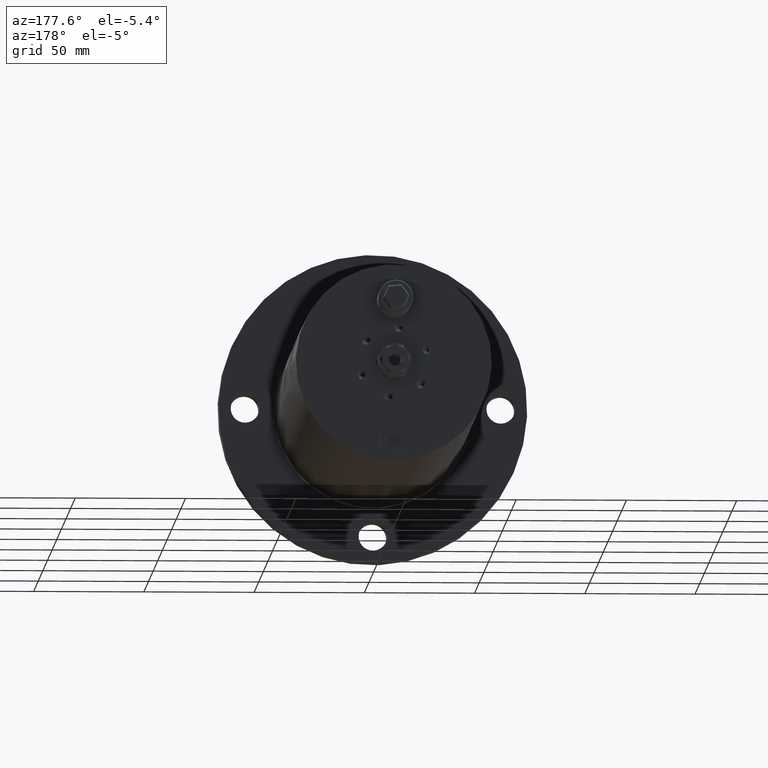
[diagram: clean part render]
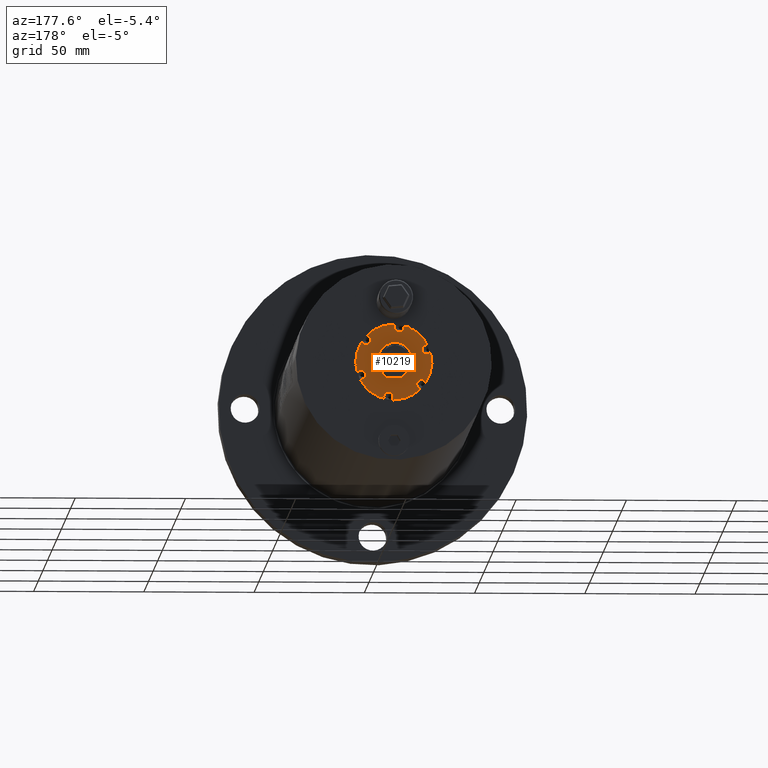
[diagram: same view with one face highlighted and labeled with its STEP entity id]
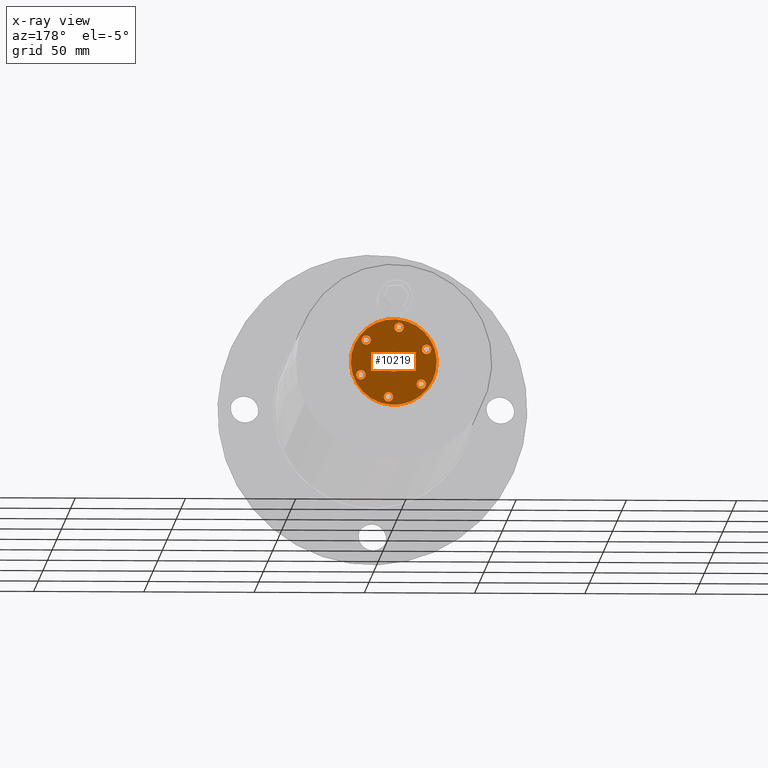
[diagram: x-ray of the same camera — body ghosted, the highlighted face saturated]
A machine part, auxiliary view. The second image highlights one B-rep face of the part: STEP entity #10219.
The next image is the same camera in x-ray: the body ghosted, the highlighted face saturated — about 0% of this face is hidden behind the body in this view.
In plain terms, the highlighted planar face has unit normal (-0, -1, 0).
Its self-contained STEP definition (entity closure, byte-faithful):
#71 = CARTESIAN_POINT ( 'NONE',  ( -13.25960417752542700, 218.5000000000000000, 7.140931105628778800 ) ) ;
#774 = ORIENTED_EDGE ( 'NONE', *, *, #4988, .F. ) ;
#948 = EDGE_CURVE ( 'NONE', #26288, #12910, #34213, .T. ) ;
#1126 = ORIENTED_EDGE ( 'NONE', *, *, #16879, .F. ) ;
#1185 = DIRECTION ( 'NONE',  ( 4.737586986270516600E-017, 1.000000000000000000, -3.427729654826224900E-016 ) ) ;
#1541 = FACE_BOUND ( 'NONE', #30358, .T. ) ;
#1750 = DIRECTION ( 'NONE',  ( -0.7811794389744176600, 0.0000000000000000000, -0.6243065626145654100 ) ) ;
#2047 = DIRECTION ( 'NONE',  ( 4.737586986270516600E-017, 1.000000000000000000, -3.427729654826224900E-016 ) ) ;
#2172 = DIRECTION ( 'NONE',  ( 4.737586986270516600E-017, 1.000000000000000000, -3.427729654826224900E-016 ) ) ;
#2482 = ORIENTED_EDGE ( 'NONE', *, *, #25121, .T. ) ;
#2683 = DIRECTION ( 'NONE',  ( 4.737586986270516600E-017, 1.000000000000000000, -3.427729654826224900E-016 ) ) ;
#2802 = VERTEX_POINT ( 'NONE', #35395 ) ;
#2872 = VERTEX_POINT ( 'NONE', #15682 ) ;
#3118 = ORIENTED_EDGE ( 'NONE', *, *, #22005, .F. ) ;
#3232 = DIRECTION ( 'NONE',  ( 4.737586986270516600E-017, 1.000000000000000000, -3.427729654826224900E-016 ) ) ;
#3319 = EDGE_CURVE ( 'NONE', #2802, #11209, #34921, .T. ) ;
#3680 = DIRECTION ( 'NONE',  ( 4.737586986270516600E-017, 1.000000000000000000, -3.427729654826224900E-016 ) ) ;
#3785 = ORIENTED_EDGE ( 'NONE', *, *, #3319, .F. ) ;
#4234 = AXIS2_PLACEMENT_3D ( 'NONE', #25544, #28628, #14736 ) ;
#4324 = CARTESIAN_POINT ( 'NONE',  ( 14.13934784543746700, 218.5000000000000000, 11.29994878332363900 ) ) ;
#4476 = VERTEX_POINT ( 'NONE', #31351 ) ;
#4686 = DIRECTION ( 'NONE',  ( -0.7811794389744176600, 0.0000000000000000000, -0.6243065626145654100 ) ) ;
#4812 = DIRECTION ( 'NONE',  ( 4.737586986270516600E-017, 1.000000000000000000, -3.427729654826224900E-016 ) ) ;
#4903 = CARTESIAN_POINT ( 'NONE',  ( -12.49887102359016600, 218.5000000000000000, -9.988905001833037600 ) ) ;
#4905 = AXIS2_PLACEMENT_3D ( 'NONE', #12987, #21682, #35804 ) ;
#4988 = EDGE_CURVE ( 'NONE', #19470, #31964, #23429, .T. ) ;
#5555 = FACE_BOUND ( 'NONE', #12462, .T. ) ;
#6407 = EDGE_LOOP ( 'NONE', ( #22110, #1126 ) ) ;
#6647 = AXIS2_PLACEMENT_3D ( 'NONE', #23299, #29013, #31850 ) ;
#7343 = DIRECTION ( 'NONE',  ( 4.737586986270516600E-017, 1.000000000000000000, -3.427729654826224900E-016 ) ) ;
#7349 = CARTESIAN_POINT ( 'NONE',  ( -10.85839420174389100, 218.5000000000000000, -8.677861220342451900 ) ) ;
#7695 = DIRECTION ( 'NONE',  ( -0.7811794389744176600, 0.0000000000000000000, -0.6243065626145654100 ) ) ;
#7873 = DIRECTION ( 'NONE',  ( -0.7811794389744173300, 0.0000000000000000000, -0.6243065626145657400 ) ) ;
#8263 = CARTESIAN_POINT ( 'NONE',  ( 5.134781488891349000E-013, 218.5000000000000000, 5.204170427930421300E-015 ) ) ;
#8554 = DIRECTION ( 'NONE',  ( 4.737586986270516600E-017, 1.000000000000000000, -3.427729654826224900E-016 ) ) ;
#8923 = ORIENTED_EDGE ( 'NONE', *, *, #23219, .F. ) ;
#9459 = ORIENTED_EDGE ( 'NONE', *, *, #29887, .F. ) ;
#9575 = CARTESIAN_POINT ( 'NONE',  ( -14.90008099937170300, 218.5000000000000000, 5.829887324138192100 ) ) ;
#9982 = FACE_BOUND ( 'NONE', #6407, .T. ) ;
#10148 = CIRCLE ( 'NONE', #12710, 2.099999999999999600 ) ;
#10202 = CARTESIAN_POINT ( 'NONE',  ( 12.49887102359118900, 218.5000000000000000, 9.988905001833051900 ) ) ;
#10219 = ADVANCED_FACE ( 'NONE', ( #1541, #20233, #33497, #9982, #5555, #19763, #33038, #30860 ), #30273, .F. ) ;
#10465 = VERTEX_POINT ( 'NONE', #14659 ) ;
#11110 = DIRECTION ( 'NONE',  ( -0.7811794389744173300, 0.0000000000000000000, -0.6243065626145655200 ) ) ;
#11209 = VERTEX_POINT ( 'NONE', #71 ) ;
#11970 = CARTESIAN_POINT ( 'NONE',  ( -2.401209975780985900, 218.5000000000000300, 15.81879232597127000 ) ) ;
#12335 = AXIS2_PLACEMENT_3D ( 'NONE', #11970, #31576, #34427 ) ;
#12425 = DIRECTION ( 'NONE',  ( -0.7811794389744176600, 0.0000000000000000000, -0.6243065626145654100 ) ) ;
#12462 = EDGE_LOOP ( 'NONE', ( #12523, #3118 ) ) ;
#12523 = ORIENTED_EDGE ( 'NONE', *, *, #17151, .F. ) ;
#12619 = CARTESIAN_POINT ( 'NONE',  ( -15.23299906000063500, 218.5000000000000000, -12.17397797098402500 ) ) ;
#12697 = DIRECTION ( 'NONE',  ( 0.7811794389744174400, 0.0000000000000000000, 0.6243065626145655200 ) ) ;
#12710 = AXIS2_PLACEMENT_3D ( 'NONE', #9575, #26465, #12425 ) ;
#12910 = VERTEX_POINT ( 'NONE', #12619 ) ;
#12987 = CARTESIAN_POINT ( 'NONE',  ( 14.90008099937272900, 218.5000000000000000, -5.829887324138191200 ) ) ;
#13054 = CARTESIAN_POINT ( 'NONE',  ( -0.7607331539347106400, 218.5000000000000300, 17.12983610746185900 ) ) ;
#13267 = DIRECTION ( 'NONE',  ( -4.737586986270519000E-017, -1.000000000000000000, 3.427729654826224900E-016 ) ) ;
#13687 = VERTEX_POINT ( 'NONE', #13054 ) ;
#14164 = EDGE_LOOP ( 'NONE', ( #14168, #2482 ) ) ;
#14168 = ORIENTED_EDGE ( 'NONE', *, *, #948, .T. ) ;
#14423 = CARTESIAN_POINT ( 'NONE',  ( -14.13934784543644200, 218.5000000000000000, -11.29994878332362500 ) ) ;
#14659 = CARTESIAN_POINT ( 'NONE',  ( 3.345791537127933000, 218.5000000000000000, 2.673905007678183400 ) ) ;
#14736 = DIRECTION ( 'NONE',  ( -0.7811794389744173300, 0.0000000000000000000, -0.6243065626145655200 ) ) ;
#15444 = CARTESIAN_POINT ( 'NONE',  ( 13.25960417752645300, 218.5000000000000000, -7.140931105628777900 ) ) ;
#15682 = CARTESIAN_POINT ( 'NONE',  ( 10.85839420174491300, 218.5000000000000000, 8.677861220342464300 ) ) ;
#16135 = CARTESIAN_POINT ( 'NONE',  ( 5.134781488891349000E-013, 218.5000000000000000, 5.204170427930421300E-015 ) ) ;
#16321 = DIRECTION ( 'NONE',  ( 4.737586986270516600E-017, 1.000000000000000000, -3.427729654826224900E-016 ) ) ;
#16488 = AXIS2_PLACEMENT_3D ( 'NONE', #34847, #3232, #20362 ) ;
#16689 = CIRCLE ( 'NONE', #6647, 2.100000000000000500 ) ;
#16859 = DIRECTION ( 'NONE',  ( 0.7811794389744174400, 0.0000000000000000000, 0.6243065626145655200 ) ) ;
#16879 = EDGE_CURVE ( 'NONE', #13687, #17929, #21142, .T. ) ;
#17131 = EDGE_LOOP ( 'NONE', ( #23119, #22647 ) ) ;
#17151 = EDGE_CURVE ( 'NONE', #2872, #26620, #29579, .T. ) ;
#17195 = CIRCLE ( 'NONE', #24734, 2.099999999999999600 ) ;
#17209 = EDGE_CURVE ( 'NONE', #10465, #4476, #25151, .T. ) ;
#17852 = VERTEX_POINT ( 'NONE', #20826 ) ;
#17929 = VERTEX_POINT ( 'NONE', #21921 ) ;
#18152 = EDGE_LOOP ( 'NONE', ( #3785, #9459 ) ) ;
#18543 = AXIS2_PLACEMENT_3D ( 'NONE', #4903, #16321, #7873 ) ;
#18699 = CARTESIAN_POINT ( 'NONE',  ( -2.401209975780985900, 218.5000000000000300, 15.81879232597127000 ) ) ;
#19175 = ORIENTED_EDGE ( 'NONE', *, *, #19196, .F. ) ;
#19196 = EDGE_CURVE ( 'NONE', #31964, #19470, #28236, .T. ) ;
#19470 = VERTEX_POINT ( 'NONE', #14423 ) ;
#19567 = CARTESIAN_POINT ( 'NONE',  ( 2.401209975782013100, 218.4999999999999700, -15.81879232597126300 ) ) ;
#19703 = AXIS2_PLACEMENT_3D ( 'NONE', #18699, #2047, #35907 ) ;
#19763 = FACE_BOUND ( 'NONE', #24977, .T. ) ;
#20036 = AXIS2_PLACEMENT_3D ( 'NONE', #21025, #1185, #12697 ) ;
#20233 = FACE_OUTER_BOUND ( 'NONE', #14164, .T. ) ;
#20362 = DIRECTION ( 'NONE',  ( -0.7811794389744173300, 0.0000000000000000000, -0.6243065626145657400 ) ) ;
#20689 = CARTESIAN_POINT ( 'NONE',  ( -14.90008099937170300, 218.5000000000000000, 5.829887324138192100 ) ) ;
#20817 = EDGE_CURVE ( 'NONE', #21084, #17852, #16689, .T. ) ;
#20826 = CARTESIAN_POINT ( 'NONE',  ( 0.7607331539357367100, 218.4999999999999700, -17.12983610746185200 ) ) ;
#21025 = CARTESIAN_POINT ( 'NONE',  ( 5.134781488891349000E-013, 218.5000000000000000, 5.204170427930421300E-015 ) ) ;
#21084 = VERTEX_POINT ( 'NONE', #29967 ) ;
#21142 = CIRCLE ( 'NONE', #19703, 2.099999999999999200 ) ;
#21298 = EDGE_CURVE ( 'NONE', #17929, #13687, #30891, .T. ) ;
#21354 = AXIS2_PLACEMENT_3D ( 'NONE', #21800, #4812, #4686 ) ;
#21682 = DIRECTION ( 'NONE',  ( 4.737586986270516600E-017, 1.000000000000000000, -3.427729654826224900E-016 ) ) ;
#21800 = CARTESIAN_POINT ( 'NONE',  ( 12.49887102359118900, 218.5000000000000000, 9.988905001833051900 ) ) ;
#21921 = CARTESIAN_POINT ( 'NONE',  ( -4.041686797627262400, 218.5000000000000300, 14.50774854448068200 ) ) ;
#21960 = DIRECTION ( 'NONE',  ( 0.7811794389744174400, 1.769863563973841200E-016, 0.6243065626145655200 ) ) ;
#22005 = EDGE_CURVE ( 'NONE', #26620, #2872, #36691, .T. ) ;
#22011 = AXIS2_PLACEMENT_3D ( 'NONE', #16135, #13267, #21960 ) ;
#22067 = EDGE_CURVE ( 'NONE', #26990, #23503, #17195, .T. ) ;
#22110 = ORIENTED_EDGE ( 'NONE', *, *, #21298, .F. ) ;
#22647 = ORIENTED_EDGE ( 'NONE', *, *, #32741, .F. ) ;
#22831 = AXIS2_PLACEMENT_3D ( 'NONE', #10202, #33002, #1750 ) ;
#22906 = AXIS2_PLACEMENT_3D ( 'NONE', #20689, #3680, #32089 ) ;
#23119 = ORIENTED_EDGE ( 'NONE', *, *, #22067, .F. ) ;
#23219 = EDGE_CURVE ( 'NONE', #4476, #10465, #26914, .T. ) ;
#23299 = CARTESIAN_POINT ( 'NONE',  ( 2.401209975782013100, 218.4999999999999700, -15.81879232597126300 ) ) ;
#23391 = CARTESIAN_POINT ( 'NONE',  ( 16.54055782121900700, 218.5000000000000000, -4.518843542647603700 ) ) ;
#23429 = CIRCLE ( 'NONE', #16488, 2.099999999999998300 ) ;
#23503 = VERTEX_POINT ( 'NONE', #23391 ) ;
#24034 = AXIS2_PLACEMENT_3D ( 'NONE', #8263, #2172, #11110 ) ;
#24370 = CIRCLE ( 'NONE', #31689, 2.100000000000000500 ) ;
#24734 = AXIS2_PLACEMENT_3D ( 'NONE', #30043, #7343, #7695 ) ;
#24977 = EDGE_LOOP ( 'NONE', ( #774, #19175 ) ) ;
#25121 = EDGE_CURVE ( 'NONE', #12910, #26288, #30878, .T. ) ;
#25151 = CIRCLE ( 'NONE', #4234, 4.282999999999988800 ) ;
#25406 = DIRECTION ( 'NONE',  ( -0.7811794389744170000, 0.0000000000000000000, -0.6243065626145659600 ) ) ;
#25544 = CARTESIAN_POINT ( 'NONE',  ( 5.134781488891349000E-013, 218.5000000000000000, 5.204170427930421300E-015 ) ) ;
#25828 = EDGE_LOOP ( 'NONE', ( #29833, #29006 ) ) ;
#26288 = VERTEX_POINT ( 'NONE', #26532 ) ;
#26465 = DIRECTION ( 'NONE',  ( 4.737586986270516600E-017, 1.000000000000000000, -3.427729654826224900E-016 ) ) ;
#26532 = CARTESIAN_POINT ( 'NONE',  ( 15.23299906000165300, 218.5000000000000000, 12.17397797098403300 ) ) ;
#26620 = VERTEX_POINT ( 'NONE', #4324 ) ;
#26914 = CIRCLE ( 'NONE', #24034, 4.282999999999988800 ) ;
#26990 = VERTEX_POINT ( 'NONE', #15444 ) ;
#28236 = CIRCLE ( 'NONE', #18543, 2.099999999999998300 ) ;
#28628 = DIRECTION ( 'NONE',  ( 4.737586986270516600E-017, 1.000000000000000000, -3.427729654826224900E-016 ) ) ;
#29006 = ORIENTED_EDGE ( 'NONE', *, *, #20817, .F. ) ;
#29013 = DIRECTION ( 'NONE',  ( 4.737586986270516600E-017, 1.000000000000000000, -3.427729654826224900E-016 ) ) ;
#29358 = EDGE_CURVE ( 'NONE', #17852, #21084, #24370, .T. ) ;
#29444 = ORIENTED_EDGE ( 'NONE', *, *, #17209, .F. ) ;
#29579 = CIRCLE ( 'NONE', #21354, 2.099999999999999600 ) ;
#29833 = ORIENTED_EDGE ( 'NONE', *, *, #29358, .F. ) ;
#29887 = EDGE_CURVE ( 'NONE', #11209, #2802, #10148, .T. ) ;
#29967 = CARTESIAN_POINT ( 'NONE',  ( 4.041686797628289100, 218.4999999999999700, -14.50774854448067500 ) ) ;
#30043 = CARTESIAN_POINT ( 'NONE',  ( 14.90008099937272900, 218.5000000000000000, -5.829887324138191200 ) ) ;
#30273 = PLANE ( 'NONE',  #22011 ) ;
#30358 = EDGE_LOOP ( 'NONE', ( #8923, #29444 ) ) ;
#30860 = FACE_BOUND ( 'NONE', #17131, .T. ) ;
#30878 = CIRCLE ( 'NONE', #20036, 19.50000000000000400 ) ;
#30891 = CIRCLE ( 'NONE', #12335, 2.099999999999999200 ) ;
#31351 = CARTESIAN_POINT ( 'NONE',  ( -3.345791537126907100, 218.5000000000000000, -2.673905007678171900 ) ) ;
#31576 = DIRECTION ( 'NONE',  ( 4.737586986270516600E-017, 1.000000000000000000, -3.427729654826224900E-016 ) ) ;
#31689 = AXIS2_PLACEMENT_3D ( 'NONE', #19567, #2683, #25406 ) ;
#31850 = DIRECTION ( 'NONE',  ( -0.7811794389744170000, 0.0000000000000000000, -0.6243065626145659600 ) ) ;
#31964 = VERTEX_POINT ( 'NONE', #7349 ) ;
#32089 = DIRECTION ( 'NONE',  ( -0.7811794389744176600, 0.0000000000000000000, -0.6243065626145654100 ) ) ;
#32741 = EDGE_CURVE ( 'NONE', #23503, #26990, #34822, .T. ) ;
#33002 = DIRECTION ( 'NONE',  ( 4.737586986270516600E-017, 1.000000000000000000, -3.427729654826224900E-016 ) ) ;
#33038 = FACE_BOUND ( 'NONE', #25828, .T. ) ;
#33497 = FACE_BOUND ( 'NONE', #18152, .T. ) ;
#33957 = CARTESIAN_POINT ( 'NONE',  ( 5.134781488891349000E-013, 218.5000000000000000, 5.204170427930421300E-015 ) ) ;
#34213 = CIRCLE ( 'NONE', #34740, 19.50000000000000400 ) ;
#34427 = DIRECTION ( 'NONE',  ( -0.7811794389744174400, 0.0000000000000000000, -0.6243065626145655200 ) ) ;
#34740 = AXIS2_PLACEMENT_3D ( 'NONE', #33957, #8554, #16859 ) ;
#34822 = CIRCLE ( 'NONE', #4905, 2.099999999999999600 ) ;
#34847 = CARTESIAN_POINT ( 'NONE',  ( -12.49887102359016600, 218.5000000000000000, -9.988905001833037600 ) ) ;
#34921 = CIRCLE ( 'NONE', #22906, 2.099999999999999600 ) ;
#35395 = CARTESIAN_POINT ( 'NONE',  ( -16.54055782121798000, 218.5000000000000000, 4.518843542647604600 ) ) ;
#35804 = DIRECTION ( 'NONE',  ( -0.7811794389744176600, 0.0000000000000000000, -0.6243065626145654100 ) ) ;
#35907 = DIRECTION ( 'NONE',  ( -0.7811794389744174400, 0.0000000000000000000, -0.6243065626145655200 ) ) ;
#36691 = CIRCLE ( 'NONE', #22831, 2.099999999999999600 ) ;